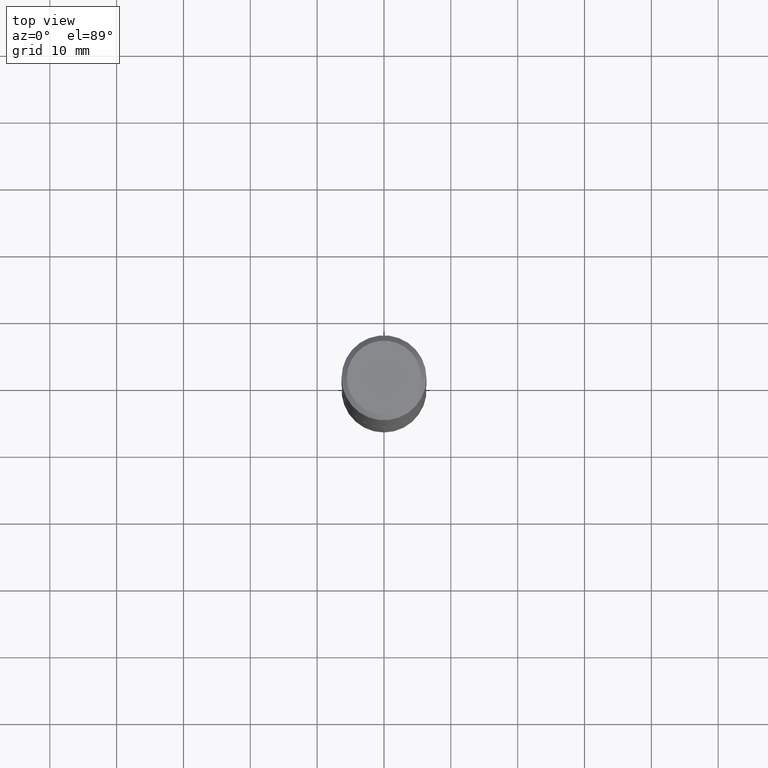
[diagram: clean part render]
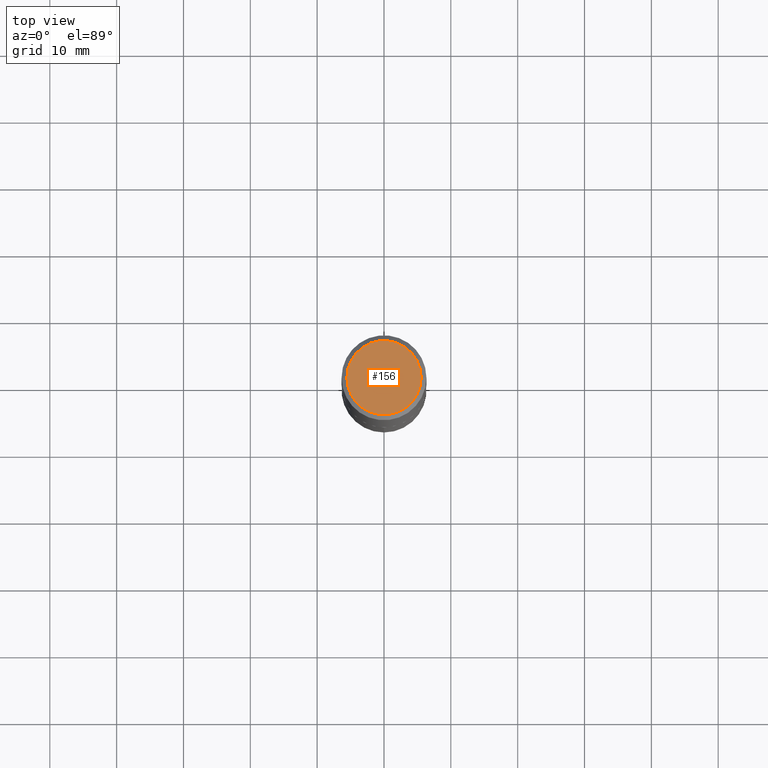
[diagram: same view with one face highlighted and labeled with its STEP entity id]
A machine part, top view. The second image highlights one B-rep face of the part: STEP entity #156.
In plain terms, the highlighted planar face has unit normal (0, -0, -1).
Its self-contained STEP definition (entity closure, byte-faithful):
#4 = DIRECTION ( 'NONE',  ( 2.438088387897960049E-29, -3.491481338843145188E-15, -1.000000000000000000 ) ) ;
#7 = CARTESIAN_POINT ( 'NONE',  ( 0.2187500000000000000, -1.662483614147127260E-15, 1.690012582834502406E-18 ) ) ;
#12 = VERTEX_POINT ( 'NONE', #330 ) ;
#16 = AXIS2_PLACEMENT_3D ( 'NONE', #369, #4, #59 ) ;
#33 = DIRECTION ( 'NONE',  ( 1.000000000000000000, -6.982962677686266711E-15, 4.876133991931148155E-29 ) ) ;
#35 = CIRCLE ( 'NONE', #127, 0.2187500000000000000 ) ;
#48 = CIRCLE ( 'NONE', #300, 0.2187500000000000000 ) ;
#59 = DIRECTION ( 'NONE',  ( -1.000000000000000000, 6.982962677686265922E-15, -4.876176775795935793E-29 ) ) ;
#80 = VERTEX_POINT ( 'NONE', #7 ) ;
#95 = DIRECTION ( 'NONE',  ( -2.445468806185136597E-29, 3.491481338843145583E-15, 1.000000000000000000 ) ) ;
#106 = DIRECTION ( 'NONE',  ( -2.445468806185136597E-29, 3.491481338843145583E-15, 1.000000000000000000 ) ) ;
#120 = CARTESIAN_POINT ( 'NONE',  ( -4.132873053354873331E-47, 5.900647395337827157E-33, 1.690012582823348383E-18 ) ) ;
#124 = FACE_OUTER_BOUND ( 'NONE', #359, .T. ) ;
#127 = AXIS2_PLACEMENT_3D ( 'NONE', #120, #95, #33 ) ;
#138 = ORIENTED_EDGE ( 'NONE', *, *, #163, .T. ) ;
#156 = ADVANCED_FACE ( 'NONE', ( #124 ), #277, .F. ) ;
#162 = ORIENTED_EDGE ( 'NONE', *, *, #338, .T. ) ;
#163 = EDGE_CURVE ( 'NONE', #12, #80, #35, .T. ) ;
#165 = CARTESIAN_POINT ( 'NONE',  ( -4.132873053354873331E-47, 5.900647395337827157E-33, 1.690012582823348383E-18 ) ) ;
#277 = PLANE ( 'NONE',  #16 ) ;
#300 = AXIS2_PLACEMENT_3D ( 'NONE', #165, #106, #343 ) ;
#330 = CARTESIAN_POINT ( 'NONE',  ( -0.2187500000000000000, 1.582077481663294210E-15, 1.690012582812475353E-18 ) ) ;
#338 = EDGE_CURVE ( 'NONE', #80, #12, #48, .T. ) ;
#343 = DIRECTION ( 'NONE',  ( 1.000000000000000000, -6.982962677686266711E-15, 4.876133991931148155E-29 ) ) ;
#359 = EDGE_LOOP ( 'NONE', ( #138, #162 ) ) ;
#369 = CARTESIAN_POINT ( 'NONE',  ( -2.066436526677436665E-47, 2.950323697668913578E-33, 8.450062914116741915E-19 ) ) ;